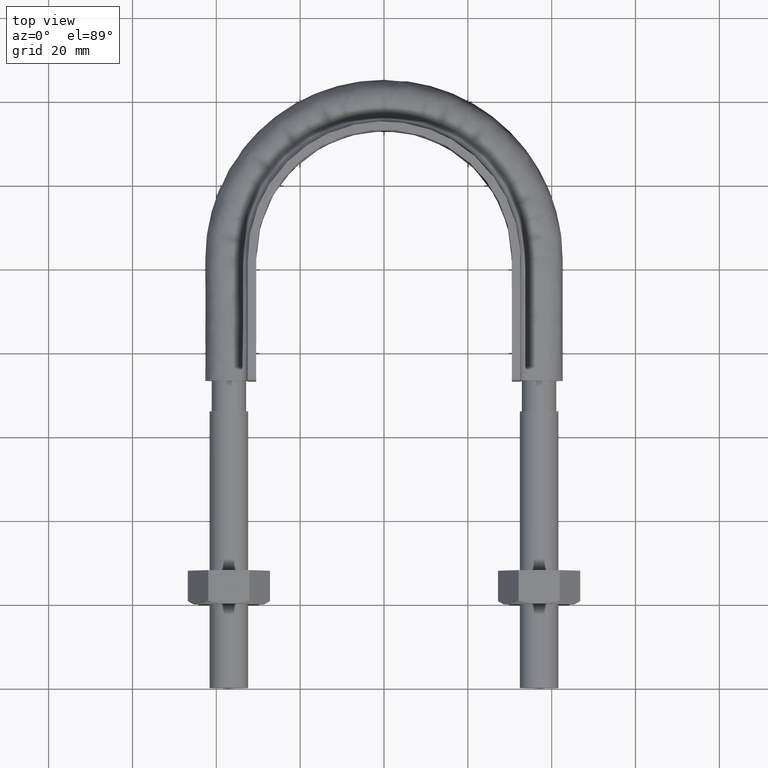
[diagram: clean part render]
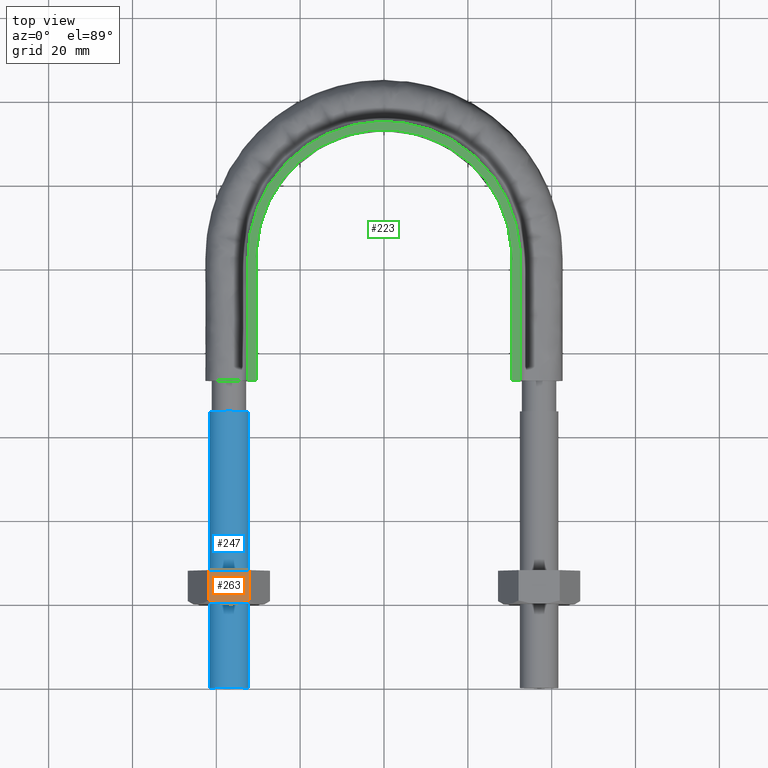
[diagram: same view with three faces highlighted in distinct colors, each labeled with its STEP entity id]
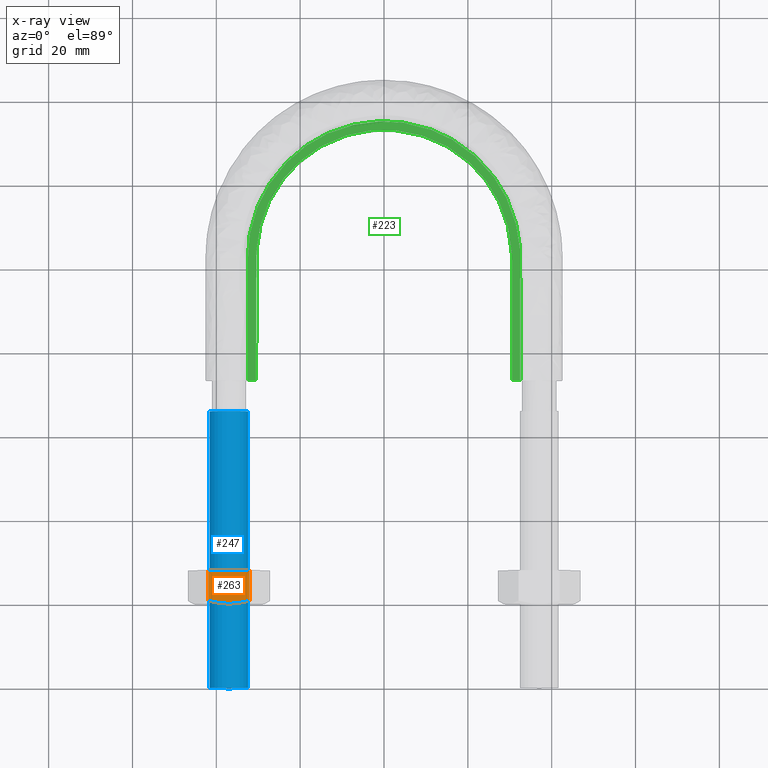
[diagram: x-ray of the same camera — body ghosted, the three highlighted faces saturated]
A machine part, top view with three faces highlighted in distinct colors.
The next image is the same camera in x-ray (body ghosted, the three faces saturated) — at least one of them is partly hidden behind the body in this view.
Their STEP definitions:

[orange] entity #263 — the highlighted planar face has unit normal (0, -0, -1).
#263 = ADVANCED_FACE( '', ( #399 ), #400, .F. );
#399 = FACE_OUTER_BOUND( '', #1396, .T. );
#400 = PLANE( '', #1397 );
#1396 = EDGE_LOOP( '', ( #1763, #1764, #1765, #1766, #1767 ) );
#1397 = AXIS2_PLACEMENT_3D( '', #1768, #1769, #1770 );
#1763 = ORIENTED_EDGE( '', *, *, #2082, .F. );
#1764 = ORIENTED_EDGE( '', *, *, #2094, .F. );
#1765 = ORIENTED_EDGE( '', *, *, #2095, .F. );
#1766 = ORIENTED_EDGE( '', *, *, #2079, .F. );
#1767 = ORIENTED_EDGE( '', *, *, #2096, .F. );
#1768 = CARTESIAN_POINT( '', ( -41.9074772881151, 27.9999999999964, 8.49999999999807 ) );
#1769 = DIRECTION( '', ( 3.92741394961149E-013, -6.12303176912151E-017, -1.00000000000000 ) );
#1770 = DIRECTION( '', ( 0.000000000000000, -1.00000000000000, 6.12303176912151E-017 ) );
#2079 = EDGE_CURVE( '', #2284, #2271, #2286, .T. );
#2082 = EDGE_CURVE( '', #2289, #2291, #2292, .T. );
#2094 = EDGE_CURVE( '', #2308, #2289, #2309, .T. );
#2095 = EDGE_CURVE( '', #2271, #2308, #2310, .F. );
#2096 = EDGE_CURVE( '', #2291, #2284, #2311, .T. );
#2271 = VERTEX_POINT( '', #2799 );
#2284 = VERTEX_POINT( '', #2816 );
#2286 = LINE( '', #2818, #2819 );
#2289 = VERTEX_POINT( '', #2822 );
#2291 = VERTEX_POINT( '', #2824 );
#2292 = B_SPLINE_CURVE_WITH_KNOTS( '', 3, ( #2825, #2826, #2827, #2828, #2829, #2830 ), .UNSPECIFIED., .F., .F., ( 4, 2, 4 ), ( 1.43048962453820E-017, 0.00246745482903607, 0.00493490965807213 ), .UNSPECIFIED. );
#2308 = VERTEX_POINT( '', #2863 );
#2309 = B_SPLINE_CURVE_WITH_KNOTS( '', 3, ( #2864, #2865, #2866, #2867, #2868, #2869 ), .UNSPECIFIED., .F., .F., ( 4, 2, 4 ), ( 4.90653893338680E-017, 0.00246745482903604, 0.00493490965807203 ), .UNSPECIFIED. );
#2310 = LINE( '', #2870, #2871 );
#2311 = LINE( '', #2872, #2873 );
#2799 = CARTESIAN_POINT( '', ( -32.1225006407005, 27.9999999999964, 8.50000000000191 ) );
#2816 = CARTESIAN_POINT( '', ( -41.8774993593062, 27.9999999999964, 8.49999999999808 ) );
#2818 = CARTESIAN_POINT( '', ( -41.9000000000033, 27.9999999999964, 8.49999999999807 ) );
#2819 = VECTOR( '', #3173, 1000.00000000000 );
#2822 = CARTESIAN_POINT( '', ( -37.0000000000033, 19.9999999999964, 8.50000000000000 ) );
#2824 = CARTESIAN_POINT( '', ( -41.8774993593062, 20.7505553499429, 8.49999999999808 ) );
#2825 = CARTESIAN_POINT( '', ( -37.0000000000033, 19.9999999999964, 8.50000000000000 ) );
#2826 = CARTESIAN_POINT( '', ( -37.8321659501940, 19.9999999999964, 8.49999999999967 ) );
#2827 = CARTESIAN_POINT( '', ( -38.6533062476890, 20.0716504305254, 8.49999999999935 ) );
#2828 = CARTESIAN_POINT( '', ( -40.2774431756662, 20.3328582843671, 8.49999999999871 ) );
#2829 = CARTESIAN_POINT( '', ( -41.0805717066806, 20.5215585493620, 8.49999999999840 ) );
#2830 = CARTESIAN_POINT( '', ( -41.8774993593062, 20.7505553499429, 8.49999999999808 ) );
#2863 = CARTESIAN_POINT( '', ( -32.1225006407005, 20.7505553499429, 8.50000000000191 ) );
#2864 = CARTESIAN_POINT( '', ( -32.1225006407005, 20.7505553499429, 8.50000000000191 ) );
#2865 = CARTESIAN_POINT( '', ( -32.9194282933261, 20.5215585493620, 8.50000000000160 ) );
#2866 = CARTESIAN_POINT( '', ( -33.7225568243406, 20.3328582843670, 8.50000000000129 ) );
#2867 = CARTESIAN_POINT( '', ( -35.3466937523177, 20.0716504305254, 8.50000000000065 ) );
#2868 = CARTESIAN_POINT( '', ( -36.1678340498126, 19.9999999999964, 8.50000000000033 ) );
#2869 = CARTESIAN_POINT( '', ( -37.0000000000033, 19.9999999999964, 8.50000000000000 ) );
#2870 = CARTESIAN_POINT( '', ( -32.1225006407005, 27.9999999999964, 8.50000000000191 ) );
#2871 = VECTOR( '', #3200, 1000.00000000000 );
#2872 = CARTESIAN_POINT( '', ( -41.8774993593062, 27.9999999999964, 8.49999999999808 ) );
#2873 = VECTOR( '', #3201, 1000.00000000000 );
#3173 = DIRECTION( '', ( 1.00000000000000, -2.44921270764452E-016, 3.92741394961149E-013 ) );
#3200 = DIRECTION( '', ( 2.44921270764475E-016, 1.00000000000000, -6.12303176911192E-017 ) );
#3201 = DIRECTION( '', ( 2.44921270764475E-016, 1.00000000000000, -6.12303176911192E-017 ) );

[blue] entity #247 — the highlighted cylindrical surface (bore or boss wall) has radius 4.6 mm, axis along (0, 1, -0).
#247 = ADVANCED_FACE( '', ( #361, #362 ), #363, .T. );
#361 = FACE_OUTER_BOUND( '', #1358, .T. );
#362 = FACE_OUTER_BOUND( '', #1359, .T. );
#363 = CYLINDRICAL_SURFACE( '', #1360, 4.60000000000000 );
#1358 = EDGE_LOOP( '', ( #1647 ) );
#1359 = EDGE_LOOP( '', ( #1648 ) );
#1360 = AXIS2_PLACEMENT_3D( '', #1649, #1650, #1651 );
#1647 = ORIENTED_EDGE( '', *, *, #2050, .T. );
#1648 = ORIENTED_EDGE( '', *, *, #2047, .F. );
#1649 = CARTESIAN_POINT( '', ( -37.0000000000000, 66.0000000000000, -4.07793915822852E-015 ) );
#1650 = DIRECTION( '', ( 2.44921270764475E-016, 1.00000000000000, -6.12303176911189E-017 ) );
#1651 = DIRECTION( '', ( 1.00000000000000, -2.44921270764475E-016, 0.000000000000000 ) );
#2047 = EDGE_CURVE( '', #2225, #2225, #2226, .T. );
#2050 = EDGE_CURVE( '', #2231, #2231, #2232, .T. );
#2225 = VERTEX_POINT( '', #2722 );
#2226 = CIRCLE( '', #2723, 4.60000000000000 );
#2231 = VERTEX_POINT( '', #2728 );
#2232 = CIRCLE( '', #2729, 4.60000000000000 );
#2722 = CARTESIAN_POINT( '', ( -32.4000000000000, 7.93544917276900E-015, -3.67381906146716E-017 ) );
#2723 = AXIS2_PLACEMENT_3D( '', #3112, #3113, #3114 );
#2728 = CARTESIAN_POINT( '', ( -32.4000000000000, 66.0000000000000, -4.07793915822852E-015 ) );
#2729 = AXIS2_PLACEMENT_3D( '', #3121, #3122, #3123 );
#3112 = CARTESIAN_POINT( '', ( -37.0000000000000, 9.06208701828559E-015, -3.67381906146716E-017 ) );
#3113 = DIRECTION( '', ( -2.44921270764475E-016, -1.00000000000000, 6.12303176911189E-017 ) );
#3114 = DIRECTION( '', ( 1.00000000000000, -2.44921270764475E-016, 0.000000000000000 ) );
#3121 = CARTESIAN_POINT( '', ( -37.0000000000000, 66.0000000000000, -4.07793915822852E-015 ) );
#3122 = DIRECTION( '', ( -2.44921270764475E-016, -1.00000000000000, 6.12303176911189E-017 ) );
#3123 = DIRECTION( '', ( 1.00000000000000, -2.44921270764475E-016, 0.000000000000000 ) );

[green] entity #223 — the highlighted planar face has unit normal (0, 0, 1).
#223 = ADVANCED_FACE( '', ( #306 ), #307, .T. );
#306 = FACE_OUTER_BOUND( '', #1004, .T. );
#307 = PLANE( '', #1005 );
#1004 = EDGE_LOOP( '', ( #1492, #1493, #1494, #1495 ) );
#1005 = AXIS2_PLACEMENT_3D( '', #1496, #1497, #1498 );
#1492 = ORIENTED_EDGE( '', *, *, #2014, .T. );
#1493 = ORIENTED_EDGE( '', *, *, #2016, .T. );
#1494 = ORIENTED_EDGE( '', *, *, #2003, .T. );
#1495 = ORIENTED_EDGE( '', *, *, #2010, .F. );
#1496 = CARTESIAN_POINT( '', ( 45.0000000000000, 153.300000000000, 12.5000000000000 ) );
#1497 = DIRECTION( '', ( 0.000000000000000, 0.000000000000000, 1.00000000000000 ) );
#1498 = DIRECTION( '', ( 1.00000000000000, 0.000000000000000, 0.000000000000000 ) );
#2003 = EDGE_CURVE( '', #2155, #2156, #2157, .T. );
#2010 = EDGE_CURVE( '', #2167, #2156, #2169, .T. );
#2014 = EDGE_CURVE( '', #2167, #2173, #2175, .T. );
#2016 = EDGE_CURVE( '', #2173, #2155, #2178, .T. );
#2155 = VERTEX_POINT( '', #2405 );
#2156 = VERTEX_POINT( '', #2406 );
#2157 = LINE( '', #2407, #2408 );
#2167 = VERTEX_POINT( '', #2475 );
#2169 = B_SPLINE_CURVE_WITH_KNOTS( '', 3, ( #2507, #2508, #2509, #2510, #2511, #2512, #2513, #2514, #2515, #2516, #2517, #2518, #2519, #2520, #2521, #2522, #2523 ), .UNSPECIFIED., .F., .F., ( 4, 3, 1, 1, 1, 1, 1, 1, 1, 3, 4 ), ( 0.117824773413900, 1.00000000000000, 1.50000000000000, 2.00000000000000, 3.00000000000000, 4.00000000000000, 5.00000000000000, 6.00000000000000, 6.50000000000000, 7.00000000000000, 7.88217522658610 ), .UNSPECIFIED. );
#2173 = VERTEX_POINT( '', #2544 );
#2175 = LINE( '', #2547, #2548 );
#2178 = B_SPLINE_CURVE_WITH_KNOTS( '', 3, ( #2560, #2561, #2562, #2563, #2564, #2565, #2566, #2567, #2568, #2569, #2570, #2571, #2572, #2573, #2574, #2575, #2576, #2577, #2578, #2579, #2580, #2581, #2582, #2583, #2584, #2585, #2586, #2587, #2588, #2589, #2590, #2591, #2592, #2593, #2594, #2595, #2596, #2597, #2598, #2599, #2600, #2601, #2602, #2603, #2604, #2605, #2606, #2607, #2608, #2609, #2610, #2611, #2612, #2613, #2614, #2615, #2616, #2617, #2618, #2619, #2620, #2621, #2622, #2623, #2624, #2625, #2626, #2627, #2628, #2629, #2630, #2631, #2632, #2633 ), .UNSPECIFIED., .F., .F., ( 4, 1, 2, 2, 2, 2, 2, 2, 2, 2, 2, 2, 2, 2, 2, 2, 2, 2, 2, 2, 2, 2, 2, 2, 2, 2, 2, 2, 2, 2, 2, 2, 2, 2, 2, 2, 1, 4 ), ( 0.000000000000000, 0.0192554222640497, 0.0288831333960746, 0.0300865972875777, 0.0312900611790808, 0.0336969889620870, 0.0385108445280995, 0.0433247000941120, 0.0445281639856152, 0.0457316278771183, 0.0481385556601245, 0.0529524112261371, 0.0553593390091433, 0.0577662667921496, 0.0625801223581622, 0.0649870501411685, 0.0673939779241748, 0.0722078334901873, 0.0746147612731936, 0.0770216890561999, 0.0818355446222125, 0.0842424724052188, 0.0866494001882251, 0.0914632557542377, 0.0938701835372440, 0.0962771113202503, 0.101090966886263, 0.103497894669269, 0.105904822452275, 0.110718678018288, 0.115532533584301, 0.117939461367307, 0.120346389150313, 0.122753316933320, 0.123956780824823, 0.125160244716326, 0.134787955848351, 0.154043378112401 ), .UNSPECIFIED. );
#2405 = CARTESIAN_POINT( '', ( 30.5000000000000, 73.3000000000001, 12.5000000000000 ) );
#2406 = CARTESIAN_POINT( '', ( 32.5000000000000, 73.3000000000001, 12.5000000000000 ) );
#2407 = CARTESIAN_POINT( '', ( 45.0000000000000, 73.3000000000001, 12.5000000000000 ) );
#2408 = VECTOR( '', #3058, 1000.00000000000 );
#2475 = CARTESIAN_POINT( '', ( -32.5000000000000, 73.3000000000001, 12.5000000000000 ) );
#2507 = CARTESIAN_POINT( '', ( -32.5000000000000, 73.3000000000001, 12.5000000000000 ) );
#2508 = CARTESIAN_POINT( '', ( -32.5000000000000, 83.0333333333334, 12.5000000000000 ) );
#2509 = CARTESIAN_POINT( '', ( -32.5000000000000, 92.7666666666667, 12.5000000000000 ) );
#2510 = CARTESIAN_POINT( '', ( -32.5000000000000, 102.500000000000, 12.5000000000000 ) );
#2511 = CARTESIAN_POINT( '', ( -32.5000000000000, 105.325542369813, 12.5000000000000 ) );
#2512 = CARTESIAN_POINT( '', ( -31.7387347919768, 111.008617759312, 12.5000000000000 ) );
#2513 = CARTESIAN_POINT( '', ( -27.3871545291852, 121.582731692400, 12.5000000000000 ) );
#2514 = CARTESIAN_POINT( '', ( -17.0093196223625, 131.962325971844, 12.5000000000000 ) );
#2515 = CARTESIAN_POINT( '', ( 3.23306948061794E-014, 136.518837014078, 12.5000000000000 ) );
#2516 = CARTESIAN_POINT( '', ( 17.0093196223626, 131.962325971844, 12.5000000000000 ) );
#2517 = CARTESIAN_POINT( '', ( 27.3871545291853, 121.582731692400, 12.5000000000000 ) );
#2518 = CARTESIAN_POINT( '', ( 31.7387347919769, 111.008617759312, 12.5000000000000 ) );
#2519 = CARTESIAN_POINT( '', ( 32.5000000000000, 105.325542369813, 12.5000000000000 ) );
#2520 = CARTESIAN_POINT( '', ( 32.5000000000000, 102.500000000000, 12.5000000000000 ) );
#2521 = CARTESIAN_POINT( '', ( 32.5000000000000, 92.7666666666667, 12.5000000000000 ) );
#2522 = CARTESIAN_POINT( '', ( 32.5000000000000, 83.0333333333334, 12.5000000000000 ) );
#2523 = CARTESIAN_POINT( '', ( 32.5000000000000, 73.3000000000001, 12.5000000000000 ) );
#2544 = CARTESIAN_POINT( '', ( -30.5000000000000, 73.3000000000001, 12.5000000000000 ) );
#2547 = CARTESIAN_POINT( '', ( 45.0000000000000, 73.3000000000001, 12.5000000000000 ) );
#2548 = VECTOR( '', #3063, 1000.00000000000 );
#2560 = CARTESIAN_POINT( '', ( -30.5000000000000, 73.3000000000001, 12.5000000000000 ) );
#2561 = CARTESIAN_POINT( '', ( -30.5000000000000, 79.7187970838913, 12.5000000000000 ) );
#2562 = CARTESIAN_POINT( '', ( -30.5000000000000, 89.3469927097281, 12.5000000000000 ) );
#2563 = CARTESIAN_POINT( '', ( -30.5000000000000, 98.9751883355649, 12.5000000000000 ) );
#2564 = CARTESIAN_POINT( '', ( -30.5000000000000, 102.585761695254, 12.5000000000000 ) );
#2565 = CARTESIAN_POINT( '', ( -30.4986844541323, 102.986923314969, 12.5000000000000 ) );
#2566 = CARTESIAN_POINT( '', ( -30.4745981741132, 103.789031308254, 12.5000000000000 ) );
#2567 = CARTESIAN_POINT( '', ( -30.4544492509141, 104.190003984771, 12.5000000000000 ) );
#2568 = CARTESIAN_POINT( '', ( -30.3699321862256, 105.392680532489, 12.5000000000000 ) );
#2569 = CARTESIAN_POINT( '', ( -30.2815513452004, 106.194196915207, 12.5000000000000 ) );
#2570 = CARTESIAN_POINT( '', ( -29.9199873207873, 108.597457571638, 12.5000000000000 ) );
#2571 = CARTESIAN_POINT( '', ( -29.5571198360745, 110.159787861722, 12.5000000000000 ) );
#2572 = CARTESIAN_POINT( '', ( -28.5972722047829, 113.207880590115, 12.5000000000000 ) );
#2573 = CARTESIAN_POINT( '', ( -28.0002144656635, 114.693617651351, 12.5000000000000 ) );
#2574 = CARTESIAN_POINT( '', ( -27.0992764629767, 116.500221008755, 12.5000000000000 ) );
#2575 = CARTESIAN_POINT( '', ( -26.9108830168220, 116.859704838131, 12.5000000000000 ) );
#2576 = CARTESIAN_POINT( '', ( -26.5213882779156, 117.567587786141, 12.5000000000000 ) );
#2577 = CARTESIAN_POINT( '', ( -26.3200606712639, 117.916474396834, 12.5000000000000 ) );
#2578 = CARTESIAN_POINT( '', ( -25.6966622493176, 118.948219384474, 12.5000000000000 ) );
#2579 = CARTESIAN_POINT( '', ( -25.2552822010553, 119.616244628455, 12.5000000000000 ) );
#2580 = CARTESIAN_POINT( '', ( -23.8563980365694, 121.562902855286, 12.5000000000000 ) );
#2581 = CARTESIAN_POINT( '', ( -22.8247599514250, 122.784586967088, 12.5000000000000 ) );
#2582 = CARTESIAN_POINT( '', ( -21.1277356912023, 124.502217366142, 12.5000000000000 ) );
#2583 = CARTESIAN_POINT( '', ( -20.5344294178501, 125.057480363821, 12.5000000000000 ) );
#2584 = CARTESIAN_POINT( '', ( -19.3154400053685, 126.111482848479, 12.5000000000000 ) );
#2585 = CARTESIAN_POINT( '', ( -18.6885192790513, 126.611839840476, 12.5000000000000 ) );
#2586 = CARTESIAN_POINT( '', ( -16.7561230155804, 128.033962699371, 12.5000000000000 ) );
#2587 = CARTESIAN_POINT( '', ( -15.3990725127794, 128.876870841469, 12.5000000000000 ) );
#2588 = CARTESIAN_POINT( '', ( -13.2570671195093, 129.978502957120, 12.5000000000000 ) );
#2589 = CARTESIAN_POINT( '', ( -12.5228230069798, 130.319814017707, 12.5000000000000 ) );
#2590 = CARTESIAN_POINT( '', ( -11.0306240768060, 130.942412499717, 12.5000000000000 ) );
#2591 = CARTESIAN_POINT( '', ( -10.2767436568867, 131.222274993299, 12.5000000000000 ) );
#2592 = CARTESIAN_POINT( '', ( -7.99256638845166, 131.970812104532, 12.5000000000000 ) );
#2593 = CARTESIAN_POINT( '', ( -6.43991564048131, 132.349172113476, 12.5000000000000 ) );
#2594 = CARTESIAN_POINT( '', ( -4.06589188416628, 132.734709900453, 12.5000000000000 ) );
#2595 = CARTESIAN_POINT( '', ( -3.26699737472984, 132.832705696047, 12.5000000000000 ) );
#2596 = CARTESIAN_POINT( '', ( -1.65347310558416, 132.965123458688, 12.5000000000000 ) );
#2597 = CARTESIAN_POINT( '', ( -0.846703494355733, 132.998768451046, 12.5000000000000 ) );
#2598 = CARTESIAN_POINT( '', ( 1.55984817231918, 133.002363337310, 12.5000000000000 ) );
#2599 = CARTESIAN_POINT( '', ( 3.15187678310376, 132.876183128002, 12.5000000000000 ) );
#2600 = CARTESIAN_POINT( '', ( 5.52210746155246, 132.501305428157, 12.5000000000000 ) );
#2601 = CARTESIAN_POINT( '', ( 6.30919715953047, 132.345218975853, 12.5000000000000 ) );
#2602 = CARTESIAN_POINT( '', ( 7.87729381106992, 131.969662553274, 12.5000000000000 ) );
#2603 = CARTESIAN_POINT( '', ( 8.65917048563720, 131.749575242181, 12.5000000000000 ) );
#2604 = CARTESIAN_POINT( '', ( 10.9545464152788, 131.005259840030, 12.5000000000000 ) );
#2605 = CARTESIAN_POINT( '', ( 12.4320231471581, 130.394841390723, 12.5000000000000 ) );
#2606 = CARTESIAN_POINT( '', ( 14.5688395440172, 129.307386671407, 12.5000000000000 ) );
#2607 = CARTESIAN_POINT( '', ( 15.2677563263257, 128.915999398825, 12.5000000000000 ) );
#2608 = CARTESIAN_POINT( '', ( 16.6381409078520, 128.073822399900, 12.5000000000000 ) );
#2609 = CARTESIAN_POINT( '', ( 17.3125759005461, 127.620964775786, 12.5000000000000 ) );
#2610 = CARTESIAN_POINT( '', ( 19.2664798661708, 126.192854811404, 12.5000000000000 ) );
#2611 = CARTESIAN_POINT( '', ( 20.4798446876839, 125.148667712286, 12.5000000000000 ) );
#2612 = CARTESIAN_POINT( '', ( 22.1715309172385, 123.449889227024, 12.5000000000000 ) );
#2613 = CARTESIAN_POINT( '', ( 22.7138929749291, 122.861402400307, 12.5000000000000 ) );
#2614 = CARTESIAN_POINT( '', ( 23.7548102890672, 121.639210134757, 12.5000000000000 ) );
#2615 = CARTESIAN_POINT( '', ( 24.2544864579076, 121.003952520684, 12.5000000000000 ) );
#2616 = CARTESIAN_POINT( '', ( 25.6776288297832, 119.037581170348, 12.5000000000000 ) );
#2617 = CARTESIAN_POINT( '', ( 26.5096219006963, 117.668392928187, 12.5000000000000 ) );
#2618 = CARTESIAN_POINT( '', ( 27.9456565910456, 114.816255937661, 12.5000000000000 ) );
#2619 = CARTESIAN_POINT( '', ( 28.5509590265554, 113.333936406938, 12.5000000000000 ) );
#2620 = CARTESIAN_POINT( '', ( 29.2876344042200, 111.024979684816, 12.5000000000000 ) );
#2621 = CARTESIAN_POINT( '', ( 29.5032356740682, 110.243977307862, 12.5000000000000 ) );
#2622 = CARTESIAN_POINT( '', ( 29.8703294719088, 108.679738122459, 12.5000000000000 ) );
#2623 = CARTESIAN_POINT( '', ( 30.0228181117526, 107.893587442054, 12.5000000000000 ) );
#2624 = CARTESIAN_POINT( '', ( 30.2663038414341, 106.313305021184, 12.5000000000000 ) );
#2625 = CARTESIAN_POINT( '', ( 30.3573018810972, 105.519173403997, 12.5000000000000 ) );
#2626 = CARTESIAN_POINT( '', ( 30.4466313783281, 104.321854045247, 12.5000000000000 ) );
#2627 = CARTESIAN_POINT( '', ( 30.4685308150342, 103.921725219210, 12.5000000000000 ) );
#2628 = CARTESIAN_POINT( '', ( 30.4961990804468, 103.119373956692, 12.5000000000000 ) );
#2629 = CARTESIAN_POINT( '', ( 30.5000000000001, 102.716896102985, 12.5000000000000 ) );
#2630 = CARTESIAN_POINT( '', ( 30.5000000000001, 99.0901554875488, 12.5000000000000 ) );
#2631 = CARTESIAN_POINT( '', ( 30.5000000000000, 89.4188471797180, 12.5000000000000 ) );
#2632 = CARTESIAN_POINT( '', ( 30.5000000000000, 79.7475388718872, 12.5000000000000 ) );
#2633 = CARTESIAN_POINT( '', ( 30.5000000000000, 73.3000000000001, 12.5000000000000 ) );
#3058 = DIRECTION( '', ( 1.00000000000000, -1.22460635382238E-016, 0.000000000000000 ) );
#3063 = DIRECTION( '', ( 1.00000000000000, -1.22460635382238E-016, 0.000000000000000 ) );